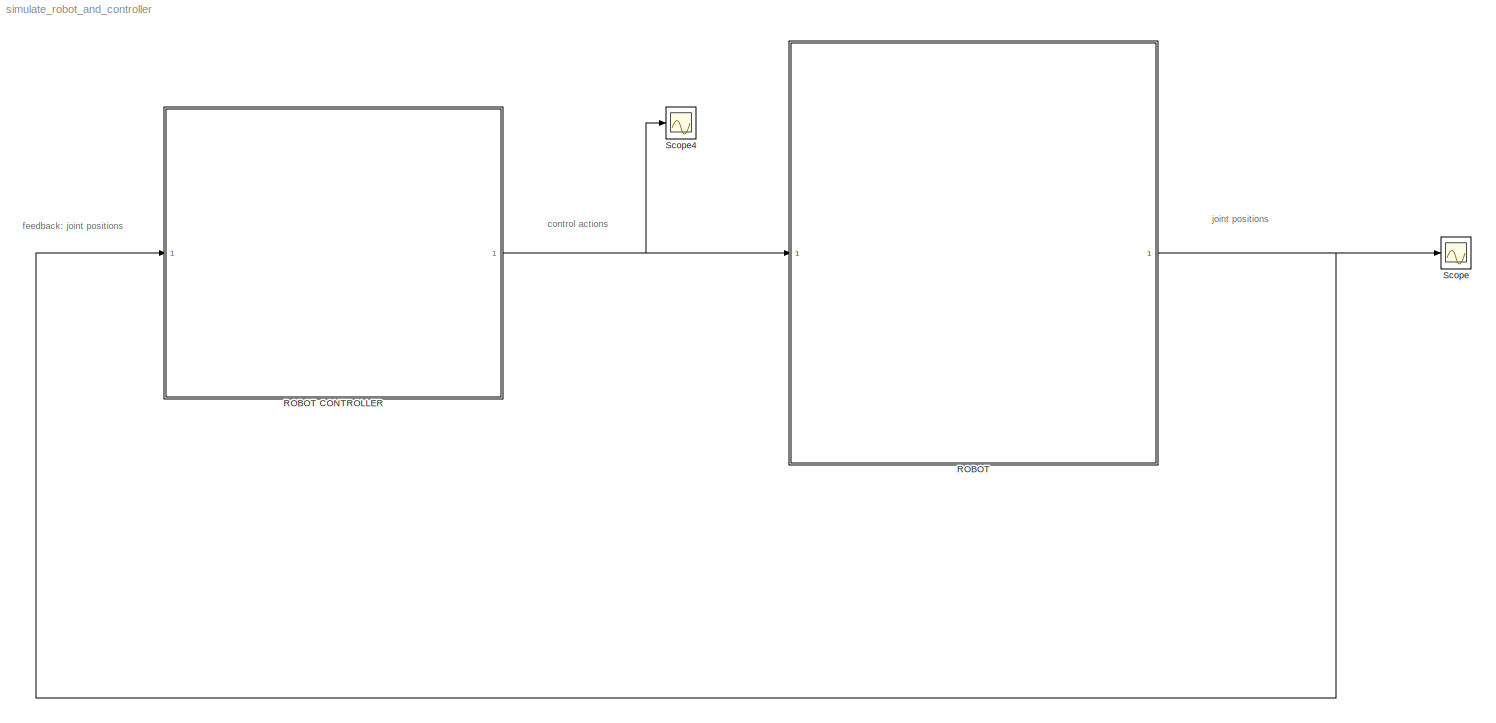
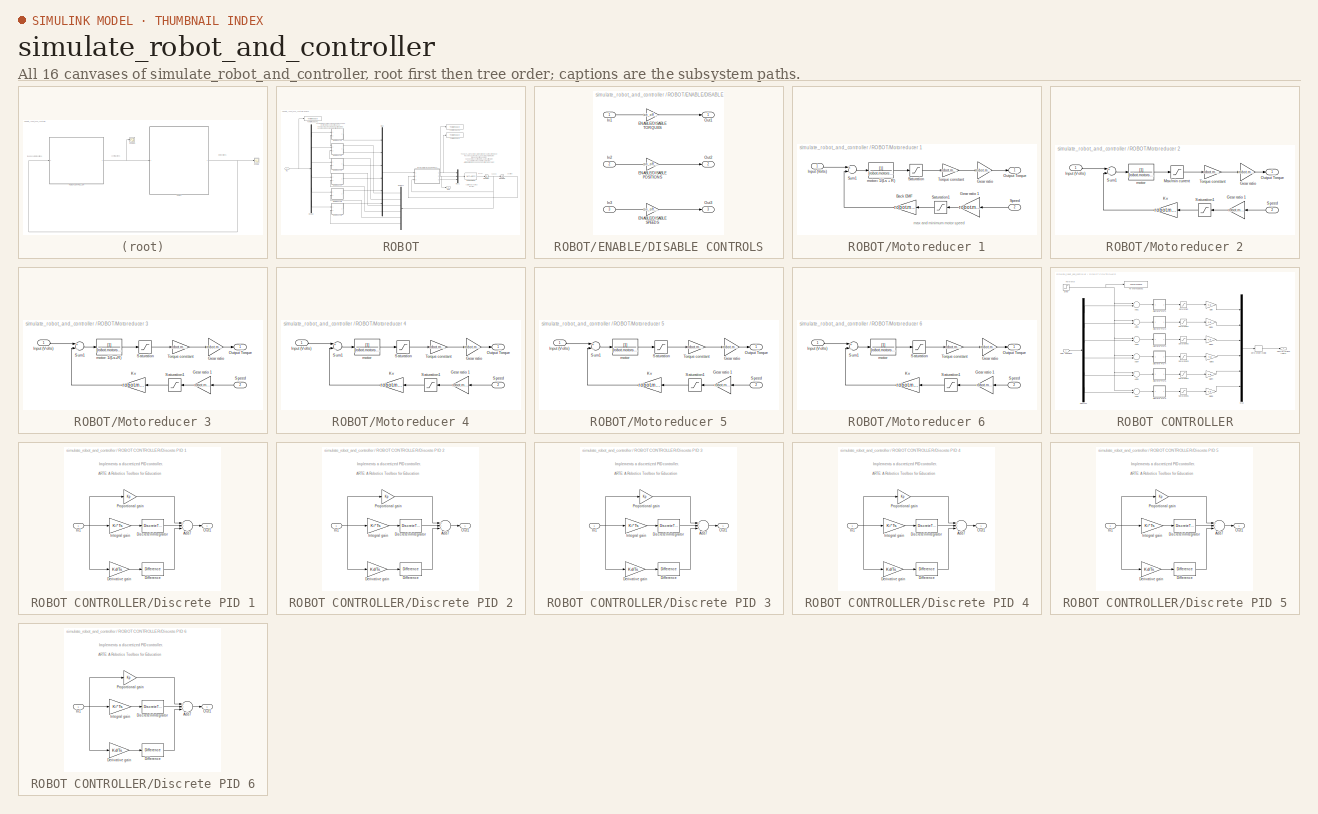
[diagram: thumbnail index - all 16 canvases of the model, root first then tree order]
MODEL simulate_robot_and_controller
KIND model
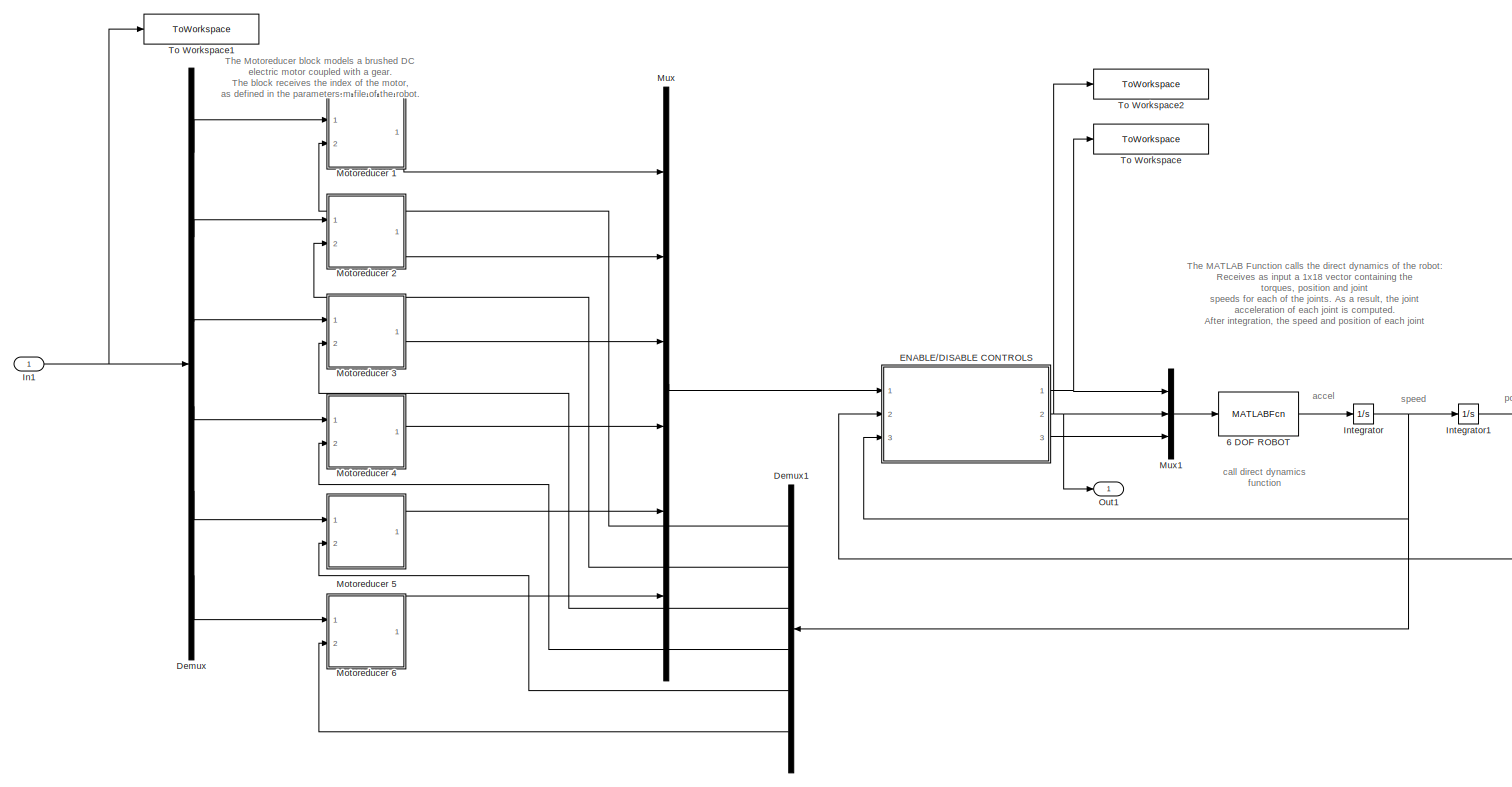
[diagram: ROBOT - part 1/2, most of the canvas]
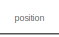
[diagram: ROBOT - part 2/2, middle right region]
BLOCK [SubSystem] ROBOT
  FunctionWithSeparateData = off
  MaskDisplay = port_label('output', 1, 'Joint positions (rad)')\nport_label('input', 1, 'Control actions (Volts)')\nimage(imread('images/robot.png'))
  MaskHideContents = off
  MaskIconFrame = on
  MaskIconOpaque = on
  MaskIconRotate = none
  MaskIconUnits = autoscale
  MaskPortRotate = default
  MinAlgLoopOccurrences = off
  Opaque = off
  Ports = [1, 1]
  PropExecContextOutsideSubsystem = off
  RTWSystemCode = Auto
  RequestExecContextInheritance = off
  SID = 1
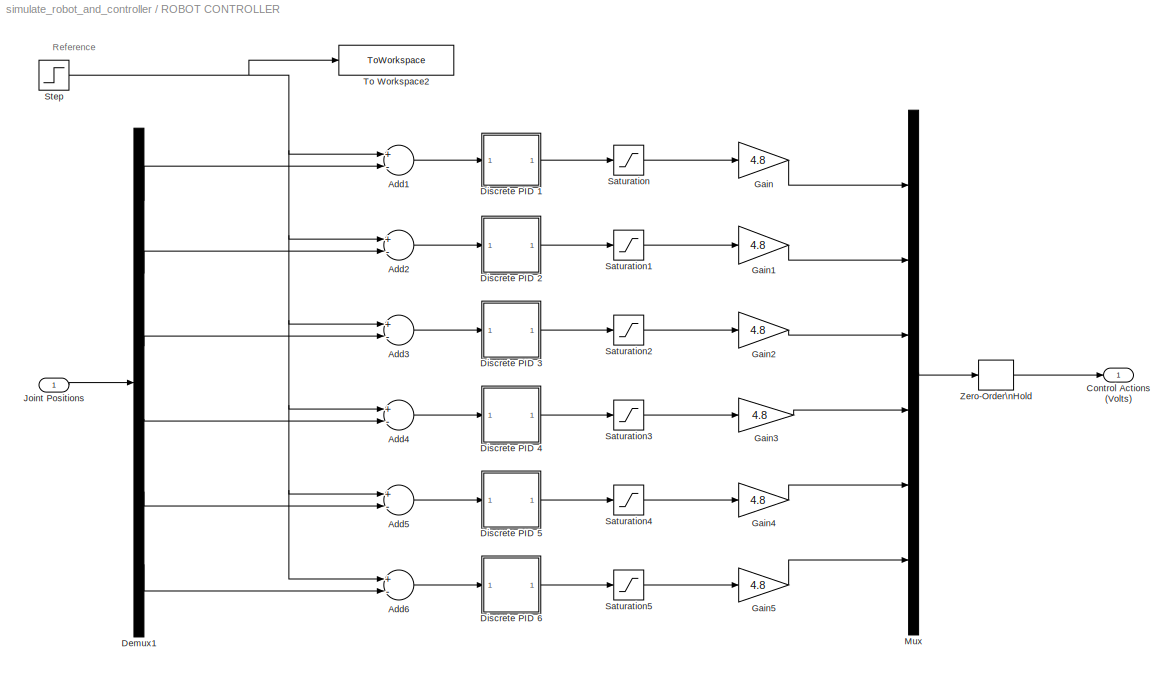
BLOCK [SubSystem] ROBOT CONTROLLER
  Description = ROBOT CONTROLLER
  FunctionWithSeparateData = off
  MaskDisplay = port_label('output', 1, 'Control Actions')\nport_label('input', 1, 'Joint Positions')\nimage(imread('images/robot-controller.jpg'))
  MaskHideContents = off
  MaskIconFrame = on
  MaskIconOpaque = on
  MaskIconRotate = none
  MaskIconUnits = autoscale
  MaskPortRotate = default
  MinAlgLoopOccurrences = off
  Opaque = off
  Ports = [1, 1]
  PropExecContextOutsideSubsystem = off
  RTWSystemCode = Auto
  RequestExecContextInheritance = off
  SID = 90
BLOCK [Sum] ROBOT CONTROLLER/Add1
  InputSameDT = off
  Inputs = +-
  OutDataTypeStr = Inherit: Inherit via internal rule
  Ports = [2, 1]
  SID = 92
  SaturateOnIntegerOverflow = off
BLOCK [Sum] ROBOT CONTROLLER/Add2
  InputSameDT = off
  Inputs = +-
  OutDataTypeStr = Inherit: Inherit via internal rule
  Ports = [2, 1]
  SID = 93
  SaturateOnIntegerOverflow = off
BLOCK [Sum] ROBOT CONTROLLER/Add3
  InputSameDT = off
  Inputs = +-
  OutDataTypeStr = Inherit: Inherit via internal rule
  Ports = [2, 1]
  SID = 94
  SaturateOnIntegerOverflow = off
BLOCK [Sum] ROBOT CONTROLLER/Add4
  InputSameDT = off
  Inputs = +-
  OutDataTypeStr = Inherit: Inherit via internal rule
  Ports = [2, 1]
  SID = 95
  SaturateOnIntegerOverflow = off
BLOCK [Sum] ROBOT CONTROLLER/Add5
  InputSameDT = off
  Inputs = +-
  OutDataTypeStr = Inherit: Inherit via internal rule
  Ports = [2, 1]
  SID = 96
  SaturateOnIntegerOverflow = off
BLOCK [Sum] ROBOT CONTROLLER/Add6
  InputSameDT = off
  Inputs = +-
  OutDataTypeStr = Inherit: Inherit via internal rule
  Ports = [2, 1]
  SID = 97
  SaturateOnIntegerOverflow = off
BLOCK [Outport] ROBOT CONTROLLER/Control Actions (Volts)
  IconDisplay = Port number
  SID = 168
BLOCK [Demux] ROBOT CONTROLLER/Demux1
  DisplayOption = bar
  Outputs = 6
  Ports = [1, 6]
  SID = 98
BLOCK [SubSystem] ROBOT CONTROLLER/Discrete PID 1
  FunctionWithSeparateData = off
  MaskCallbackString = |||
  MaskDisplay = port_label('input',1,'e(k)')\nport_label('output',1,'u(k)')\n\n
  MaskEnableString = on,on,on,on
  MaskHideContents = off
  MaskIconFrame = on
  MaskIconOpaque = on
  MaskIconRotate = none
  MaskIconUnits = autoscale
  MaskPortRotate = default
  MaskPromptString = Proportional gain:|Derivative gain:|Integral gain: |Sample time:
  MaskStyleString = edit,edit,edit,edit
  MaskToolTipString = on,on,on,on
  MaskTunableValueString = on,on,on,on
  MaskValueString = 600|6|0|0.001
  MaskVariables = Kp=@1;Kd=@2;Ki=@3;Ts=@4;
  MaskVisibilityString = on,on,on,on
  MinAlgLoopOccurrences = off
  Opaque = off
  Ports = [1, 1]
  PropExecContextOutsideSubsystem = off
  RTWSystemCode = Auto
  RequestExecContextInheritance = off
  SID = 99
BLOCK [Sum] ROBOT CONTROLLER/Discrete PID 1/Add7
  InputSameDT = off
  Inputs = +++
  OutDataTypeStr = Inherit: Inherit via internal rule
  Ports = [3, 1]
  SID = 101
  SaturateOnIntegerOverflow = off
BLOCK [Gain] ROBOT CONTROLLER/Discrete PID 1/Derivative gain
  Gain = Kd/Ts
  OutDataTypeStr = Inherit: Inherit via internal rule
  ParamDataTypeStr = Inherit: Inherit via internal rule
  SID = 102
  SaturateOnIntegerOverflow = off
BLOCK [Reference] ROBOT CONTROLLER/Discrete PID 1/Difference  REF=simulink/Discrete/Difference
  DoSatur = off
  FunctionWithSeparateData = off
  GeneratePreprocessorConditionals = off
  ICPrevInput = 0.0
  LockScale = off
  OutDataType = fixdt(1, 16)
  OutDataTypeStr = Inherit: Inherit via internal rule
  OutMax = []
  OutMin = []
  OutScaling = 2^-10
  OutputDataTypeScalingMode = Inherit via internal rule
  Ports = [1, 1]
  RTWMemSecDataConstants = Inherit from model
  RTWMemSecDataInternal = Inherit from model
  RTWMemSecDataParameters = Inherit from model
  RTWMemSecFuncExecute = Inherit from model
  RTWMemSecFuncInitTerm = Inherit from model
  RndMeth = Floor
  SID = 103
  ShowPortLabels = FromPortIcon
  SourceBlock = simulink/Discrete/Difference
  SourceType = Difference
  SystemSampleTime = -1
BLOCK [DiscreteTransferFcn] ROBOT CONTROLLER/Discrete PID 1/Discrete\nIntegrator
  Denominator = [1 -1]
  Numerator = [1 0]
  SID = 104
  SampleTime = Ts
BLOCK [Inport] ROBOT CONTROLLER/Discrete PID 1/In1
  IconDisplay = Port number
  SID = 100
BLOCK [Gain] ROBOT CONTROLLER/Discrete PID 1/Integral gain
  Gain = Ki*Ts
  OutDataTypeStr = Inherit: Inherit via internal rule
  ParamDataTypeStr = Inherit: Inherit via internal rule
  SID = 105
  SaturateOnIntegerOverflow = off
BLOCK [Outport] ROBOT CONTROLLER/Discrete PID 1/Out1
  IconDisplay = Port number
  SID = 107
BLOCK [Gain] ROBOT CONTROLLER/Discrete PID 1/Proportional gain
  Gain = Kp
  OutDataTypeStr = Inherit: Inherit via internal rule
  ParamDataTypeStr = Inherit: Inherit via internal rule
  SID = 106
  SaturateOnIntegerOverflow = off
BLOCK [SubSystem] ROBOT CONTROLLER/Discrete PID 2
  FunctionWithSeparateData = off
  MaskCallbackString = |||
  MaskDisplay = port_label('input',1,'e(k)')\nport_label('output',1,'u(k)')\n\n
  MaskEnableString = on,on,on,on
  MaskHideContents = off
  MaskIconFrame = on
  MaskIconOpaque = on
  MaskIconRotate = none
  MaskIconUnits = autoscale
  MaskPortRotate = default
  MaskPromptString = Proportional gain:|Derivative gain:|Integral gain: |Sample time:
  MaskStyleString = edit,edit,edit,edit
  MaskToolTipString = on,on,on,on
  MaskTunableValueString = on,on,on,on
  MaskValueString = 1000|10|5|0.001
  MaskVariables = Kp=@1;Kd=@2;Ki=@3;Ts=@4;
  MaskVisibilityString = on,on,on,on
  MinAlgLoopOccurrences = off
  Opaque = off
  Ports = [1, 1]
  PropExecContextOutsideSubsystem = off
  RTWSystemCode = Auto
  RequestExecContextInheritance = off
  SID = 108
BLOCK [Sum] ROBOT CONTROLLER/Discrete PID 2/Add7
  InputSameDT = off
  Inputs = +++
  OutDataTypeStr = Inherit: Inherit via internal rule
  Ports = [3, 1]
  SID = 110
  SaturateOnIntegerOverflow = off
BLOCK [Gain] ROBOT CONTROLLER/Discrete PID 2/Derivative gain
  Gain = Kd/Ts
  OutDataTypeStr = Inherit: Inherit via internal rule
  ParamDataTypeStr = Inherit: Inherit via internal rule
  SID = 111
  SaturateOnIntegerOverflow = off
BLOCK [Reference] ROBOT CONTROLLER/Discrete PID 2/Difference  REF=simulink/Discrete/Difference
  DoSatur = off
  FunctionWithSeparateData = off
  GeneratePreprocessorConditionals = off
  ICPrevInput = 0.0
  LockScale = off
  OutDataType = fixdt(1, 16)
  OutDataTypeStr = Inherit: Inherit via internal rule
  OutMax = []
  OutMin = []
  OutScaling = 2^-10
  OutputDataTypeScalingMode = Inherit via internal rule
  Ports = [1, 1]
  RTWMemSecDataConstants = Inherit from model
  RTWMemSecDataInternal = Inherit from model
  RTWMemSecDataParameters = Inherit from model
  RTWMemSecFuncExecute = Inherit from model
  RTWMemSecFuncInitTerm = Inherit from model
  RndMeth = Floor
  SID = 112
  ShowPortLabels = FromPortIcon
  SourceBlock = simulink/Discrete/Difference
  SourceType = Difference
  SystemSampleTime = -1
BLOCK [DiscreteTransferFcn] ROBOT CONTROLLER/Discrete PID 2/Discrete\nIntegrator
  Denominator = [1 -1]
  Numerator = [1 0]
  SID = 113
  SampleTime = Ts
BLOCK [Inport] ROBOT CONTROLLER/Discrete PID 2/In1
  IconDisplay = Port number
  SID = 109
BLOCK [Gain] ROBOT CONTROLLER/Discrete PID 2/Integral gain
  Gain = Ki*Ts
  OutDataTypeStr = Inherit: Inherit via internal rule
  ParamDataTypeStr = Inherit: Inherit via internal rule
  SID = 114
  SaturateOnIntegerOverflow = off
BLOCK [Outport] ROBOT CONTROLLER/Discrete PID 2/Out1
  IconDisplay = Port number
  SID = 116
BLOCK [Gain] ROBOT CONTROLLER/Discrete PID 2/Proportional gain
  Gain = Kp
  OutDataTypeStr = Inherit: Inherit via internal rule
  ParamDataTypeStr = Inherit: Inherit via internal rule
  SID = 115
  SaturateOnIntegerOverflow = off
BLOCK [SubSystem] ROBOT CONTROLLER/Discrete PID 3
  FunctionWithSeparateData = off
  MaskCallbackString = |||
  MaskDisplay = port_label('input',1,'e(k)')\nport_label('output',1,'u(k)')\n\n
  MaskEnableString = on,on,on,on
  MaskHideContents = off
  MaskIconFrame = on
  MaskIconOpaque = on
  MaskIconRotate = none
  MaskIconUnits = autoscale
  MaskPortRotate = default
  MaskPromptString = Proportional gain:|Derivative gain:|Integral gain: |Sample time:
  MaskStyleString = edit,edit,edit,edit
  MaskToolTipString = on,on,on,on
  MaskTunableValueString = on,on,on,on
  MaskValueString = 800|7|5|0.001
  MaskVariables = Kp=@1;Kd=@2;Ki=@3;Ts=@4;
  MaskVisibilityString = on,on,on,on
  MinAlgLoopOccurrences = off
  Opaque = off
  Ports = [1, 1]
  PropExecContextOutsideSubsystem = off
  RTWSystemCode = Auto
  RequestExecContextInheritance = off
  SID = 117
BLOCK [Sum] ROBOT CONTROLLER/Discrete PID 3/Add7
  InputSameDT = off
  Inputs = +++
  OutDataTypeStr = Inherit: Inherit via internal rule
  Ports = [3, 1]
  SID = 119
  SaturateOnIntegerOverflow = off
BLOCK [Gain] ROBOT CONTROLLER/Discrete PID 3/Derivative gain
  Gain = Kd/Ts
  OutDataTypeStr = Inherit: Inherit via internal rule
  ParamDataTypeStr = Inherit: Inherit via internal rule
  SID = 120
  SaturateOnIntegerOverflow = off
BLOCK [Reference] ROBOT CONTROLLER/Discrete PID 3/Difference  REF=simulink/Discrete/Difference
  DoSatur = off
  FunctionWithSeparateData = off
  GeneratePreprocessorConditionals = off
  ICPrevInput = 0.0
  LockScale = off
  OutDataType = fixdt(1, 16)
  OutDataTypeStr = Inherit: Inherit via internal rule
  OutMax = []
  OutMin = []
  OutScaling = 2^-10
  OutputDataTypeScalingMode = Inherit via internal rule
  Ports = [1, 1]
  RTWMemSecDataConstants = Inherit from model
  RTWMemSecDataInternal = Inherit from model
  RTWMemSecDataParameters = Inherit from model
  RTWMemSecFuncExecute = Inherit from model
  RTWMemSecFuncInitTerm = Inherit from model
  RndMeth = Floor
  SID = 121
  ShowPortLabels = FromPortIcon
  SourceBlock = simulink/Discrete/Difference
  SourceType = Difference
  SystemSampleTime = -1
BLOCK [DiscreteTransferFcn] ROBOT CONTROLLER/Discrete PID 3/Discrete\nIntegrator
  Denominator = [1 -1]
  Numerator = [1 0]
  SID = 122
  SampleTime = Ts
BLOCK [Inport] ROBOT CONTROLLER/Discrete PID 3/In1
  IconDisplay = Port number
  SID = 118
BLOCK [Gain] ROBOT CONTROLLER/Discrete PID 3/Integral gain
  Gain = Ki*Ts
  OutDataTypeStr = Inherit: Inherit via internal rule
  ParamDataTypeStr = Inherit: Inherit via internal rule
  SID = 123
  SaturateOnIntegerOverflow = off
BLOCK [Outport] ROBOT CONTROLLER/Discrete PID 3/Out1
  IconDisplay = Port number
  SID = 125
BLOCK [Gain] ROBOT CONTROLLER/Discrete PID 3/Proportional gain
  Gain = Kp
  OutDataTypeStr = Inherit: Inherit via internal rule
  ParamDataTypeStr = Inherit: Inherit via internal rule
  SID = 124
  SaturateOnIntegerOverflow = off
BLOCK [SubSystem] ROBOT CONTROLLER/Discrete PID 4
  FunctionWithSeparateData = off
  MaskCallbackString = |||
  MaskDisplay = port_label('input',1,'e(k)')\nport_label('output',1,'u(k)')\n\n
  MaskEnableString = on,on,on,on
  MaskHideContents = off
  MaskIconFrame = on
  MaskIconOpaque = on
  MaskIconRotate = none
  MaskIconUnits = autoscale
  MaskPortRotate = default
  MaskPromptString = Proportional gain:|Derivative gain:|Integral gain: |Sample time:
  MaskStyleString = edit,edit,edit,edit
  MaskToolTipString = on,on,on,on
  MaskTunableValueString = on,on,on,on
  MaskValueString = 2000|10|0|0.001
  MaskVariables = Kp=@1;Kd=@2;Ki=@3;Ts=@4;
  MaskVisibilityString = on,on,on,on
  MinAlgLoopOccurrences = off
  Opaque = off
  Ports = [1, 1]
  PropExecContextOutsideSubsystem = off
  RTWSystemCode = Auto
  RequestExecContextInheritance = off
  SID = 126
BLOCK [Sum] ROBOT CONTROLLER/Discrete PID 4/Add7
  InputSameDT = off
  Inputs = +++
  OutDataTypeStr = Inherit: Inherit via internal rule
  Ports = [3, 1]
  SID = 128
  SaturateOnIntegerOverflow = off
BLOCK [Gain] ROBOT CONTROLLER/Discrete PID 4/Derivative gain
  Gain = Kd/Ts
  OutDataTypeStr = Inherit: Inherit via internal rule
  ParamDataTypeStr = Inherit: Inherit via internal rule
  SID = 129
  SaturateOnIntegerOverflow = off
BLOCK [Reference] ROBOT CONTROLLER/Discrete PID 4/Difference  REF=simulink/Discrete/Difference
  DoSatur = off
  FunctionWithSeparateData = off
  GeneratePreprocessorConditionals = off
  ICPrevInput = 0.0
  LockScale = off
  OutDataType = fixdt(1, 16)
  OutDataTypeStr = Inherit: Inherit via internal rule
  OutMax = []
  OutMin = []
  OutScaling = 2^-10
  OutputDataTypeScalingMode = Inherit via internal rule
  Ports = [1, 1]
  RTWMemSecDataConstants = Inherit from model
  RTWMemSecDataInternal = Inherit from model
  RTWMemSecDataParameters = Inherit from model
  RTWMemSecFuncExecute = Inherit from model
  RTWMemSecFuncInitTerm = Inherit from model
  RndMeth = Floor
  SID = 130
  ShowPortLabels = FromPortIcon
  SourceBlock = simulink/Discrete/Difference
  SourceType = Difference
  SystemSampleTime = -1
BLOCK [DiscreteTransferFcn] ROBOT CONTROLLER/Discrete PID 4/Discrete\nIntegrator
  Denominator = [1 -1]
  Numerator = [1 0]
  SID = 131
  SampleTime = Ts
BLOCK [Inport] ROBOT CONTROLLER/Discrete PID 4/In1
  IconDisplay = Port number
  SID = 127
BLOCK [Gain] ROBOT CONTROLLER/Discrete PID 4/Integral gain
  Gain = Ki*Ts
  OutDataTypeStr = Inherit: Inherit via internal rule
  ParamDataTypeStr = Inherit: Inherit via internal rule
  SID = 132
  SaturateOnIntegerOverflow = off
BLOCK [Outport] ROBOT CONTROLLER/Discrete PID 4/Out1
  IconDisplay = Port number
  SID = 134
BLOCK [Gain] ROBOT CONTROLLER/Discrete PID 4/Proportional gain
  Gain = Kp
  OutDataTypeStr = Inherit: Inherit via internal rule
  ParamDataTypeStr = Inherit: Inherit via internal rule
  SID = 133
  SaturateOnIntegerOverflow = off
BLOCK [SubSystem] ROBOT CONTROLLER/Discrete PID 5
  FunctionWithSeparateData = off
  MaskCallbackString = |||
  MaskDisplay = port_label('input',1,'e(k)')\nport_label('output',1,'u(k)')\n\n
  MaskEnableString = on,on,on,on
  MaskHideContents = off
  MaskIconFrame = on
  MaskIconOpaque = on
  MaskIconRotate = none
  MaskIconUnits = autoscale
  MaskPortRotate = default
  MaskPromptString = Proportional gain:|Derivative gain:|Integral gain: |Sample time:
  MaskStyleString = edit,edit,edit,edit
  MaskToolTipString = on,on,on,on
  MaskTunableValueString = on,on,on,on
  MaskValueString = 3000|7|3|0.001
  MaskVariables = Kp=@1;Kd=@2;Ki=@3;Ts=@4;
  MaskVisibilityString = on,on,on,on
  MinAlgLoopOccurrences = off
  Opaque = off
  Ports = [1, 1]
  PropExecContextOutsideSubsystem = off
  RTWSystemCode = Auto
  RequestExecContextInheritance = off
  SID = 135
BLOCK [Sum] ROBOT CONTROLLER/Discrete PID 5/Add7
  InputSameDT = off
  Inputs = +++
  OutDataTypeStr = Inherit: Inherit via internal rule
  Ports = [3, 1]
  SID = 137
  SaturateOnIntegerOverflow = off
BLOCK [Gain] ROBOT CONTROLLER/Discrete PID 5/Derivative gain
  Gain = Kd/Ts
  OutDataTypeStr = Inherit: Inherit via internal rule
  ParamDataTypeStr = Inherit: Inherit via internal rule
  SID = 138
  SaturateOnIntegerOverflow = off
BLOCK [Reference] ROBOT CONTROLLER/Discrete PID 5/Difference  REF=simulink/Discrete/Difference
  DoSatur = off
  FunctionWithSeparateData = off
  GeneratePreprocessorConditionals = off
  ICPrevInput = 0.0
  LockScale = off
  OutDataType = fixdt(1, 16)
  OutDataTypeStr = Inherit: Inherit via internal rule
  OutMax = []
  OutMin = []
  OutScaling = 2^-10
  OutputDataTypeScalingMode = Inherit via internal rule
  Ports = [1, 1]
  RTWMemSecDataConstants = Inherit from model
  RTWMemSecDataInternal = Inherit from model
  RTWMemSecDataParameters = Inherit from model
  RTWMemSecFuncExecute = Inherit from model
  RTWMemSecFuncInitTerm = Inherit from model
  RndMeth = Floor
  SID = 139
  ShowPortLabels = FromPortIcon
  SourceBlock = simulink/Discrete/Difference
  SourceType = Difference
  SystemSampleTime = -1
BLOCK [DiscreteTransferFcn] ROBOT CONTROLLER/Discrete PID 5/Discrete\nIntegrator
  Denominator = [1 -1]
  Numerator = [1 0]
  SID = 140
  SampleTime = Ts
BLOCK [Inport] ROBOT CONTROLLER/Discrete PID 5/In1
  IconDisplay = Port number
  SID = 136
BLOCK [Gain] ROBOT CONTROLLER/Discrete PID 5/Integral gain
  Gain = Ki*Ts
  OutDataTypeStr = Inherit: Inherit via internal rule
  ParamDataTypeStr = Inherit: Inherit via internal rule
  SID = 141
  SaturateOnIntegerOverflow = off
BLOCK [Outport] ROBOT CONTROLLER/Discrete PID 5/Out1
  IconDisplay = Port number
  SID = 143
BLOCK [Gain] ROBOT CONTROLLER/Discrete PID 5/Proportional gain
  Gain = Kp
  OutDataTypeStr = Inherit: Inherit via internal rule
  ParamDataTypeStr = Inherit: Inherit via internal rule
  SID = 142
  SaturateOnIntegerOverflow = off
BLOCK [SubSystem] ROBOT CONTROLLER/Discrete PID 6
  FunctionWithSeparateData = off
  MaskCallbackString = |||
  MaskDisplay = port_label('input',1,'e(k)')\nport_label('output',1,'u(k)')\n\n
  MaskEnableString = on,on,on,on
  MaskHideContents = off
  MaskIconFrame = on
  MaskIconOpaque = on
  MaskIconRotate = none
  MaskIconUnits = autoscale
  MaskPortRotate = default
  MaskPromptString = Proportional gain:|Derivative gain:|Integral gain: |Sample time:
  MaskStyleString = edit,edit,edit,edit
  MaskToolTipString = on,on,on,on
  MaskTunableValueString = on,on,on,on
  MaskValueString = 3000|5|0|0.001
  MaskVariables = Kp=@1;Kd=@2;Ki=@3;Ts=@4;
  MaskVisibilityString = on,on,on,on
  MinAlgLoopOccurrences = off
  Opaque = off
  Ports = [1, 1]
  PropExecContextOutsideSubsystem = off
  RTWSystemCode = Auto
  RequestExecContextInheritance = off
  SID = 144
BLOCK [Sum] ROBOT CONTROLLER/Discrete PID 6/Add7
  InputSameDT = off
  Inputs = +++
  OutDataTypeStr = Inherit: Inherit via internal rule
  Ports = [3, 1]
  SID = 146
  SaturateOnIntegerOverflow = off
BLOCK [Gain] ROBOT CONTROLLER/Discrete PID 6/Derivative gain
  Gain = Kd/Ts
  OutDataTypeStr = Inherit: Inherit via internal rule
  ParamDataTypeStr = Inherit: Inherit via internal rule
  SID = 147
  SaturateOnIntegerOverflow = off
BLOCK [Reference] ROBOT CONTROLLER/Discrete PID 6/Difference  REF=simulink/Discrete/Difference
  DoSatur = off
  FunctionWithSeparateData = off
  GeneratePreprocessorConditionals = off
  ICPrevInput = 0.0
  LockScale = off
  OutDataType = fixdt(1, 16)
  OutDataTypeStr = Inherit: Inherit via internal rule
  OutMax = []
  OutMin = []
  OutScaling = 2^-10
  OutputDataTypeScalingMode = Inherit via internal rule
  Ports = [1, 1]
  RTWMemSecDataConstants = Inherit from model
  RTWMemSecDataInternal = Inherit from model
  RTWMemSecDataParameters = Inherit from model
  RTWMemSecFuncExecute = Inherit from model
  RTWMemSecFuncInitTerm = Inherit from model
  RndMeth = Floor
  SID = 148
  ShowPortLabels = FromPortIcon
  SourceBlock = simulink/Discrete/Difference
  SourceType = Difference
  SystemSampleTime = -1
BLOCK [DiscreteTransferFcn] ROBOT CONTROLLER/Discrete PID 6/Discrete\nIntegrator
  Denominator = [1 -1]
  Numerator = [1 0]
  SID = 149
  SampleTime = Ts
BLOCK [Inport] ROBOT CONTROLLER/Discrete PID 6/In1
  IconDisplay = Port number
  SID = 145
BLOCK [Gain] ROBOT CONTROLLER/Discrete PID 6/Integral gain
  Gain = Ki*Ts
  OutDataTypeStr = Inherit: Inherit via internal rule
  ParamDataTypeStr = Inherit: Inherit via internal rule
  SID = 150
  SaturateOnIntegerOverflow = off
BLOCK [Outport] ROBOT CONTROLLER/Discrete PID 6/Out1
  IconDisplay = Port number
  SID = 152
BLOCK [Gain] ROBOT CONTROLLER/Discrete PID 6/Proportional gain
  Gain = Kp
  OutDataTypeStr = Inherit: Inherit via internal rule
  ParamDataTypeStr = Inherit: Inherit via internal rule
  SID = 151
  SaturateOnIntegerOverflow = off
BLOCK [Gain] ROBOT CONTROLLER/Gain
  Gain = 4.8
  OutDataTypeStr = Inherit: Inherit via internal rule
  ParamDataTypeStr = Inherit: Inherit via internal rule
  SID = 153
  SaturateOnIntegerOverflow = off
BLOCK [Gain] ROBOT CONTROLLER/Gain1
  Gain = 4.8
  OutDataTypeStr = Inherit: Inherit via internal rule
  ParamDataTypeStr = Inherit: Inherit via internal rule
  SID = 154
  SaturateOnIntegerOverflow = off
BLOCK [Gain] ROBOT CONTROLLER/Gain2
  Gain = 4.8
  OutDataTypeStr = Inherit: Inherit via internal rule
  ParamDataTypeStr = Inherit: Inherit via internal rule
  SID = 155
  SaturateOnIntegerOverflow = off
BLOCK [Gain] ROBOT CONTROLLER/Gain3
  Gain = 4.8
  OutDataTypeStr = Inherit: Inherit via internal rule
  ParamDataTypeStr = Inherit: Inherit via internal rule
  SID = 156
  SaturateOnIntegerOverflow = off
BLOCK [Gain] ROBOT CONTROLLER/Gain4
  Gain = 4.8
  OutDataTypeStr = Inherit: Inherit via internal rule
  ParamDataTypeStr = Inherit: Inherit via internal rule
  SID = 157
  SaturateOnIntegerOverflow = off
BLOCK [Gain] ROBOT CONTROLLER/Gain5
  Gain = 4.8
  OutDataTypeStr = Inherit: Inherit via internal rule
  ParamDataTypeStr = Inherit: Inherit via internal rule
  SID = 158
  SaturateOnIntegerOverflow = off
BLOCK [Inport] ROBOT CONTROLLER/Joint Positions
  IconDisplay = Port number
  PortDimensions = 6
  SID = 91
BLOCK [Mux] ROBOT CONTROLLER/Mux
  DisplayOption = bar
  Inputs = 6
  Ports = [6, 1]
  SID = 159
BLOCK [Saturate] ROBOT CONTROLLER/Saturation
  InputPortMap = u0
  LowerLimit = -10
  Ports = [1, 1]
  SID = 160
  UpperLimit = 10
BLOCK [Saturate] ROBOT CONTROLLER/Saturation1
  InputPortMap = u0
  LowerLimit = -10
  Ports = [1, 1]
  SID = 161
  UpperLimit = 10
BLOCK [Saturate] ROBOT CONTROLLER/Saturation2
  InputPortMap = u0
  LowerLimit = -10
  Ports = [1, 1]
  SID = 162
  UpperLimit = 10
BLOCK [Saturate] ROBOT CONTROLLER/Saturation3
  InputPortMap = u0
  LowerLimit = -10
  Ports = [1, 1]
  SID = 163
  UpperLimit = 10
BLOCK [Saturate] ROBOT CONTROLLER/Saturation4
  InputPortMap = u0
  LowerLimit = -10
  Ports = [1, 1]
  SID = 164
  UpperLimit = 10
BLOCK [Saturate] ROBOT CONTROLLER/Saturation5
  InputPortMap = u0
  LowerLimit = -10
  Ports = [1, 1]
  SID = 165
  UpperLimit = 10
BLOCK [Step] ROBOT CONTROLLER/Step
  After = 0.08
  SID = 166
  SampleTime = 0
  Time = 0
BLOCK [ToWorkspace] ROBOT CONTROLLER/To Workspace2
  MaxDataPoints = inf
  Ports = [1]
  SID = 173
  SampleTime = -1
  SaveFormat = Array
  VariableName = reference
BLOCK [ZeroOrderHold] ROBOT CONTROLLER/Zero-Order\nHold
  SID = 167
  SampleTime = 0.001
BLOCK [MATLABFcn] ROBOT/6 DOF ROBOT
  MATLABFcn = call_direct_dynamics(u)
  OutputDimensions = 6
  Ports = [1, 1]
  SID = 3
BLOCK [Demux] ROBOT/Demux
  DisplayOption = bar
  Outputs = 6
  Ports = [1, 6]
  SID = 4
BLOCK [Demux] ROBOT/Demux1
  DisplayOption = bar
  Outputs = 6
  Ports = [1, 6]
  SID = 5
BLOCK [SubSystem] ROBOT/ENABLE//DISABLE CONTROLS
  FunctionWithSeparateData = off
  MaskDisplay = port_label('input', 1, 'input_torque')\nport_label('output', 1, 'output_torque')\nport_label('input', 2, 'input_pos')\nport_label('output', 2, 'output_pos')\nport_label('input', 3, 'input_vel')\nport_label('output', 3, 'output_vel')
  MaskEnableString = on
  MaskHideContents = off
  MaskIconFrame = on
  MaskIconOpaque = on
  MaskIconRotate = none
  MaskIconUnits = autoscale
  MaskPortRotate = default
  MaskPromptString = Set [1 1 1 1 1 1] to enable all motors and controls. Set [1 0 0 0 0 0] to enable just joint 1 control, [0 1 0 0 0 0] to enable 2, and so on:
  MaskStyleString = edit
  MaskToolTipString = on
  MaskTunableValueString = on
  MaskValueString = [1 1 1 1 1 1]
  MaskVariables = on_off_vector=@1;
  MaskVisibilityString = on
  MinAlgLoopOccurrences = off
  Opaque = off
  Ports = [3, 3]
  PropExecContextOutsideSubsystem = off
  RTWSystemCode = Auto
  RequestExecContextInheritance = off
  SID = 6
BLOCK [Gain] ROBOT/ENABLE//DISABLE CONTROLS/ENABLE//DISABLE POSITIONS
  Gain = on_off_vector
  OutDataTypeStr = Inherit: Inherit via internal rule
  ParamDataTypeStr = Inherit: Inherit via internal rule
  SID = 10
  SaturateOnIntegerOverflow = off
BLOCK [Gain] ROBOT/ENABLE//DISABLE CONTROLS/ENABLE//DISABLE SPEEDS
  Gain = on_off_vector
  OutDataTypeStr = Inherit: Inherit via internal rule
  ParamDataTypeStr = Inherit: Inherit via internal rule
  SID = 11
  SaturateOnIntegerOverflow = off
BLOCK [Gain] ROBOT/ENABLE//DISABLE CONTROLS/ENABLE//DISABLE TORQUES
  Gain = on_off_vector
  OutDataTypeStr = Inherit: Inherit via internal rule
  ParamDataTypeStr = Inherit: Inherit via internal rule
  SID = 12
  SaturateOnIntegerOverflow = off
BLOCK [Inport] ROBOT/ENABLE//DISABLE CONTROLS/In1
  IconDisplay = Port number
  SID = 7
BLOCK [Inport] ROBOT/ENABLE//DISABLE CONTROLS/In2
  IconDisplay = Port number
  Port = 2
  SID = 8
BLOCK [Inport] ROBOT/ENABLE//DISABLE CONTROLS/In3
  IconDisplay = Port number
  Port = 3
  SID = 9
BLOCK [Outport] ROBOT/ENABLE//DISABLE CONTROLS/Out1
  IconDisplay = Port number
  SID = 13
BLOCK [Outport] ROBOT/ENABLE//DISABLE CONTROLS/Out2
  IconDisplay = Port number
  Port = 2
  SID = 14
BLOCK [Outport] ROBOT/ENABLE//DISABLE CONTROLS/Out3
  IconDisplay = Port number
  Port = 3
  SID = 15
BLOCK [Inport] ROBOT/In1
  IconDisplay = Port number
  SID = 2
BLOCK [Integrator] ROBOT/Integrator
  InitialCondition = [0 0 0 0 0 0]
  Ports = [1, 1]
  SID = 16
BLOCK [Integrator] ROBOT/Integrator1
  InitialCondition = [0 0 0 0 0 0]
  Ports = [1, 1]
  SID = 17
BLOCK [SubSystem] ROBOT/Motoreducer 1
  FunctionWithSeparateData = off
  MaskDisplay = image(imread('images/brushless_dc.jpg'))
  MaskEnableString = on
  MaskHideContents = off
  MaskIconFrame = on
  MaskIconOpaque = on
  MaskIconRotate = none
  MaskIconUnits = autoscale
  MaskPortRotate = default
  MaskPromptString = Select motor index
  MaskStyleString = edit
  MaskToolTipString = on
  MaskTunableValueString = on
  MaskValueString = 1
  MaskVariables = index=@1;
  MaskVisibilityString = on
  MinAlgLoopOccurrences = off
  Opaque = off
  Ports = [2, 1]
  PropExecContextOutsideSubsystem = off
  RTWSystemCode = Auto
  RequestExecContextInheritance = off
  SID = 18
BLOCK [Gain] ROBOT/Motoreducer 1/Back EMF
  Gain = robot.motors.constants(index,4)
  SID = 21
BLOCK [Gain] ROBOT/Motoreducer 1/Gear ratio
  Gain = robot.motors.G(index)
  SID = 22
BLOCK [Gain] ROBOT/Motoreducer 1/Gear ratio 1
  Gain = robot.motors.G(index)
  SID = 23
BLOCK [Inport] ROBOT/Motoreducer 1/Input (Volts)
  IconDisplay = Port number
  SID = 19
BLOCK [Outport] ROBOT/Motoreducer 1/Output Torque
  IconDisplay = Port number
  InitialOutput = 0
  SID = 28
BLOCK [Saturate] ROBOT/Motoreducer 1/Saturation
  InputPortMap = u0
  LowerLimit = -robot.motors.constants(index,5)
  Ports = [1, 1]
  SID = 24
  UpperLimit = robot.motors.constants(index,5)
BLOCK [Saturate] ROBOT/Motoreducer 1/Saturation1
  InputPortMap = u0
  LowerLimit = -robot.motors.constants(index,6)
  Ports = [1, 1]
  SID = 174
  UpperLimit = robot.motors.constants(index,6)
BLOCK [Inport] ROBOT/Motoreducer 1/Speed
  IconDisplay = Port number
  Port = 2
  SID = 20
BLOCK [Sum] ROBOT/Motoreducer 1/Sum1
  Inputs = +-
  Ports = [2, 1]
  SID = 25
BLOCK [Gain] ROBOT/Motoreducer 1/Torque constant
  Gain = robot.motors.constants(index,4)
  SID = 26
BLOCK [TransferFcn] ROBOT/Motoreducer 1/motor= 1//(Ls + R)
  Denominator = [robot.motors.constants(index,2) robot.motors.constants(index,1)]
  SID = 27
BLOCK [SubSystem] ROBOT/Motoreducer 2
  FunctionWithSeparateData = off
  MaskDisplay = image(imread('images/brushless_dc.jpg'))
  MaskEnableString = on
  MaskHideContents = off
  MaskIconFrame = on
  MaskIconOpaque = on
  MaskIconRotate = none
  MaskIconUnits = autoscale
  MaskPortRotate = default
  MaskPromptString = Select motor index
  MaskStyleString = edit
  MaskToolTipString = on
  MaskTunableValueString = on
  MaskValueString = 2
  MaskVariables = index=@1;
  MaskVisibilityString = on
  MinAlgLoopOccurrences = off
  Opaque = off
  Ports = [2, 1]
  PropExecContextOutsideSubsystem = off
  RTWSystemCode = Auto
  RequestExecContextInheritance = off
  SID = 29
BLOCK [Gain] ROBOT/Motoreducer 2/Gear ratio
  Gain = robot.motors.G(index)
  SID = 32
BLOCK [Gain] ROBOT/Motoreducer 2/Gear ratio 1
  Gain = robot.motors.G(index)
  SID = 33
BLOCK [Inport] ROBOT/Motoreducer 2/Input (Volts)
  IconDisplay = Port number
  SID = 30
BLOCK [Gain] ROBOT/Motoreducer 2/Kv
  Gain = robot.motors.constants(index,4)
  SID = 34
BLOCK [Saturate] ROBOT/Motoreducer 2/Max//min current
  InputPortMap = u0
  LowerLimit = -robot.motors.constants(index,5)
  Ports = [1, 1]
  SID = 35
  UpperLimit = robot.motors.constants(index,5)
BLOCK [Outport] ROBOT/Motoreducer 2/Output Torque
  IconDisplay = Port number
  InitialOutput = 0
  SID = 39
BLOCK [Saturate] ROBOT/Motoreducer 2/Saturation1
  InputPortMap = u0
  LowerLimit = -robot.motors.constants(index,6)
  Ports = [1, 1]
  SID = 175
  UpperLimit = robot.motors.constants(index,6)
BLOCK [Inport] ROBOT/Motoreducer 2/Speed
  IconDisplay = Port number
  Port = 2
  SID = 31
BLOCK [Sum] ROBOT/Motoreducer 2/Sum1
  Inputs = +-
  Ports = [2, 1]
  SID = 36
BLOCK [Gain] ROBOT/Motoreducer 2/Torque constant
  Gain = robot.motors.constants(index,4)
  SID = 37
BLOCK [TransferFcn] ROBOT/Motoreducer 2/motor
  Denominator = [robot.motors.constants(index,2) robot.motors.constants(index,1)]
  SID = 38
BLOCK [SubSystem] ROBOT/Motoreducer 3
  FunctionWithSeparateData = off
  MaskDisplay = image(imread('images/brushless_dc.jpg'))
  MaskEnableString = on
  MaskHideContents = off
  MaskIconFrame = on
  MaskIconOpaque = on
  MaskIconRotate = none
  MaskIconUnits = autoscale
  MaskPortRotate = default
  MaskPromptString = Select motor index
  MaskStyleString = edit
  MaskToolTipString = on
  MaskTunableValueString = on
  MaskValueString = 3
  MaskVariables = index=@1;
  MaskVisibilityString = on
  MinAlgLoopOccurrences = off
  Opaque = off
  Ports = [2, 1]
  PropExecContextOutsideSubsystem = off
  RTWSystemCode = Auto
  RequestExecContextInheritance = off
  SID = 40
BLOCK [Gain] ROBOT/Motoreducer 3/Gear ratio
  Gain = robot.motors.G(index)
  SID = 43
BLOCK [Gain] ROBOT/Motoreducer 3/Gear ratio 1
  Gain = robot.motors.G(index)
  SID = 44
BLOCK [Inport] ROBOT/Motoreducer 3/Input (Volts)
  IconDisplay = Port number
  SID = 41
BLOCK [Gain] ROBOT/Motoreducer 3/Kv
  Gain = robot.motors.constants(index,4)
  SID = 45
BLOCK [Outport] ROBOT/Motoreducer 3/Output Torque
  IconDisplay = Port number
  InitialOutput = 0
  SID = 50
BLOCK [Saturate] ROBOT/Motoreducer 3/Saturation
  InputPortMap = u0
  LowerLimit = -robot.motors.constants(index,5)
  Ports = [1, 1]
  SID = 46
  UpperLimit = robot.motors.constants(index,5)
BLOCK [Saturate] ROBOT/Motoreducer 3/Saturation1
  InputPortMap = u0
  LowerLimit = -robot.motors.constants(index,6)
  Ports = [1, 1]
  SID = 176
  UpperLimit = robot.motors.constants(index,6)
BLOCK [Inport] ROBOT/Motoreducer 3/Speed
  IconDisplay = Port number
  Port = 2
  SID = 42
BLOCK [Sum] ROBOT/Motoreducer 3/Sum1
  Inputs = +-
  Ports = [2, 1]
  SID = 47
BLOCK [Gain] ROBOT/Motoreducer 3/Torque constant
  Gain = robot.motors.constants(index,4)
  SID = 48
BLOCK [TransferFcn] ROBOT/Motoreducer 3/motor: 1//(Ls+R)
  Denominator = [robot.motors.constants(index,2) robot.motors.constants(index,1)]
  SID = 49
BLOCK [SubSystem] ROBOT/Motoreducer 4
  FunctionWithSeparateData = off
  MaskDisplay = image(imread('images/brushless_dc.jpg'))
  MaskEnableString = on
  MaskHideContents = off
  MaskIconFrame = on
  MaskIconOpaque = on
  MaskIconRotate = none
  MaskIconUnits = autoscale
  MaskPortRotate = default
  MaskPromptString = Select motor index
  MaskStyleString = edit
  MaskToolTipString = on
  MaskTunableValueString = on
  MaskValueString = 4
  MaskVariables = index=@1;
  MaskVisibilityString = on
  MinAlgLoopOccurrences = off
  Opaque = off
  Ports = [2, 1]
  PropExecContextOutsideSubsystem = off
  RTWSystemCode = Auto
  RequestExecContextInheritance = off
  SID = 51
BLOCK [Gain] ROBOT/Motoreducer 4/Gear ratio
  Gain = robot.motors.G(index)
  SID = 54
BLOCK [Gain] ROBOT/Motoreducer 4/Gear ratio 1
  Gain = robot.motors.G(index)
  SID = 55
BLOCK [Inport] ROBOT/Motoreducer 4/Input (Volts)
  IconDisplay = Port number
  SID = 52
BLOCK [Gain] ROBOT/Motoreducer 4/Kv
  Gain = robot.motors.constants(index,4)
  SID = 56
BLOCK [Outport] ROBOT/Motoreducer 4/Output Torque
  IconDisplay = Port number
  InitialOutput = 0
  SID = 61
BLOCK [Saturate] ROBOT/Motoreducer 4/Saturation
  InputPortMap = u0
  LowerLimit = -robot.motors.constants(index,5)
  Ports = [1, 1]
  SID = 57
  UpperLimit = robot.motors.constants(index,5)
BLOCK [Saturate] ROBOT/Motoreducer 4/Saturation1
  InputPortMap = u0
  LowerLimit = -robot.motors.constants(index,6)
  Ports = [1, 1]
  SID = 177
  UpperLimit = robot.motors.constants(index,6)
BLOCK [Inport] ROBOT/Motoreducer 4/Speed
  IconDisplay = Port number
  Port = 2
  SID = 53
BLOCK [Sum] ROBOT/Motoreducer 4/Sum1
  Inputs = +-
  Ports = [2, 1]
  SID = 58
BLOCK [Gain] ROBOT/Motoreducer 4/Torque constant
  Gain = robot.motors.constants(index,4)
  SID = 59
BLOCK [TransferFcn] ROBOT/Motoreducer 4/motor
  Denominator = [robot.motors.constants(index,2) robot.motors.constants(index,1)]
  SID = 60
BLOCK [SubSystem] ROBOT/Motoreducer 5
  FunctionWithSeparateData = off
  MaskDisplay = image(imread('images/brushless_dc.jpg'))
  MaskEnableString = on
  MaskHideContents = off
  MaskIconFrame = on
  MaskIconOpaque = on
  MaskIconRotate = none
  MaskIconUnits = autoscale
  MaskPortRotate = default
  MaskPromptString = Select motor index
  MaskStyleString = edit
  MaskToolTipString = on
  MaskTunableValueString = on
  MaskValueString = 5
  MaskVariables = index=@1;
  MaskVisibilityString = on
  MinAlgLoopOccurrences = off
  Opaque = off
  Ports = [2, 1]
  PropExecContextOutsideSubsystem = off
  RTWSystemCode = Auto
  RequestExecContextInheritance = off
  SID = 62
BLOCK [Gain] ROBOT/Motoreducer 5/Gear ratio
  Gain = robot.motors.G(index)
  SID = 65
BLOCK [Gain] ROBOT/Motoreducer 5/Gear ratio 1
  Gain = robot.motors.G(index)
  SID = 66
BLOCK [Inport] ROBOT/Motoreducer 5/Input (Volts)
  IconDisplay = Port number
  SID = 63
BLOCK [Gain] ROBOT/Motoreducer 5/Kv
  Gain = robot.motors.constants(index,4)
  SID = 67
BLOCK [Outport] ROBOT/Motoreducer 5/Output Torque
  IconDisplay = Port number
  InitialOutput = 0
  SID = 72
BLOCK [Saturate] ROBOT/Motoreducer 5/Saturation
  InputPortMap = u0
  LowerLimit = -robot.motors.constants(index,5)
  Ports = [1, 1]
  SID = 68
  UpperLimit = robot.motors.constants(index,5)
BLOCK [Saturate] ROBOT/Motoreducer 5/Saturation1
  InputPortMap = u0
  LowerLimit = -robot.motors.constants(index,6)
  Ports = [1, 1]
  SID = 178
  UpperLimit = robot.motors.constants(index,6)
BLOCK [Inport] ROBOT/Motoreducer 5/Speed
  IconDisplay = Port number
  Port = 2
  SID = 64
BLOCK [Sum] ROBOT/Motoreducer 5/Sum1
  Inputs = +-
  Ports = [2, 1]
  SID = 69
BLOCK [Gain] ROBOT/Motoreducer 5/Torque constant
  Gain = robot.motors.constants(index,4)
  SID = 70
BLOCK [TransferFcn] ROBOT/Motoreducer 5/motor
  Denominator = [robot.motors.constants(index,2) robot.motors.constants(index,1)]
  SID = 71
BLOCK [SubSystem] ROBOT/Motoreducer 6
  FunctionWithSeparateData = off
  MaskDisplay = image(imread('images/brushless_dc.jpg'))
  MaskEnableString = on
  MaskHideContents = off
  MaskIconFrame = on
  MaskIconOpaque = on
  MaskIconRotate = none
  MaskIconUnits = autoscale
  MaskPortRotate = default
  MaskPromptString = Select motor index
  MaskStyleString = edit
  MaskToolTipString = on
  MaskTunableValueString = on
  MaskValueString = 6
  MaskVariables = index=@1;
  MaskVisibilityString = on
  MinAlgLoopOccurrences = off
  Opaque = off
  Ports = [2, 1]
  PropExecContextOutsideSubsystem = off
  RTWSystemCode = Auto
  RequestExecContextInheritance = off
  SID = 73
BLOCK [Gain] ROBOT/Motoreducer 6/Gear ratio
  Gain = robot.motors.G(index)
  SID = 76
BLOCK [Gain] ROBOT/Motoreducer 6/Gear ratio 1
  Gain = robot.motors.G(index)
  SID = 77
BLOCK [Inport] ROBOT/Motoreducer 6/Input (Volts)
  IconDisplay = Port number
  SID = 74
BLOCK [Gain] ROBOT/Motoreducer 6/Kv
  Gain = robot.motors.constants(index,4)
  SID = 78
BLOCK [Outport] ROBOT/Motoreducer 6/Output Torque
  IconDisplay = Port number
  InitialOutput = 0
  SID = 83
BLOCK [Saturate] ROBOT/Motoreducer 6/Saturation
  InputPortMap = u0
  LowerLimit = -robot.motors.constants(index,5)
  Ports = [1, 1]
  SID = 79
  UpperLimit = robot.motors.constants(index,5)
BLOCK [Saturate] ROBOT/Motoreducer 6/Saturation1
  InputPortMap = u0
  LowerLimit = -robot.motors.constants(index,6)
  Ports = [1, 1]
  SID = 179
  UpperLimit = robot.motors.constants(index,6)
BLOCK [Inport] ROBOT/Motoreducer 6/Speed
  IconDisplay = Port number
  Port = 2
  SID = 75
BLOCK [Sum] ROBOT/Motoreducer 6/Sum1
  Inputs = +-
  Ports = [2, 1]
  SID = 80
BLOCK [Gain] ROBOT/Motoreducer 6/Torque constant
  Gain = robot.motors.constants(index,4)
  SID = 81
BLOCK [TransferFcn] ROBOT/Motoreducer 6/motor
  Denominator = [robot.motors.constants(index,2) robot.motors.constants(index,1)]
  SID = 82
BLOCK [Mux] ROBOT/Mux
  DisplayOption = bar
  Inputs = 6
  Ports = [6, 1]
  SID = 84
BLOCK [Mux] ROBOT/Mux1
  DisplayOption = bar
  Inputs = 3
  Ports = [3, 1]
  SID = 85
BLOCK [Outport] ROBOT/Out1
  IconDisplay = Port number
  SID = 89
BLOCK [ToWorkspace] ROBOT/To Workspace
  MaxDataPoints = inf
  Ports = [1]
  SID = 86
  SampleTime = -1
  SaveFormat = Array
  VariableName = joint_torques
BLOCK [ToWorkspace] ROBOT/To Workspace1
  MaxDataPoints = inf
  Ports = [1]
  SID = 87
  SampleTime = -1
  SaveFormat = Array
  VariableName = control_actions
BLOCK [ToWorkspace] ROBOT/To Workspace2
  MaxDataPoints = inf
  Ports = [1]
  SID = 88
  SampleTime = -1
  SaveFormat = Array
  VariableName = joint_positions
BLOCK [Scope] Scope
  DataFormat = StructureWithTime
  Floating = off
  NumInputPorts = 1
  Ports = [1]
  SID = 169
  SampleTime = 0
  YMax = 25
  YMin = -32.5
BLOCK [Scope] Scope4
  DataFormat = StructureWithTime
  Floating = off
  NumInputPorts = 1
  Ports = [1]
  SID = 170
  SampleTime = 0
  SaveName = ScopeData4
  YMax = 50
  YMin = -2.5
ANNOTATION (root): control actions
ANNOTATION (root): feedback: joint positions
ANNOTATION (root): joint positions
ANNOTATION ROBOT: The MATLAB Function calls the direct dynamics of the robot: \nReceives as input a 1x18 vector containing the \ntorques, position and joint\nspeeds for each of the joints. As a result, the joint \nacceleration of each joint is computed. \nAfter integration, the speed and position of each joint \nis computed and sent back to the controller
ANNOTATION ROBOT: The Motoreducer block models a brushed DC \nelectric motor coupled with a gear. \nThe block receives the index of the motor, \nas defined in the parameters.m file of the robot.
ANNOTATION ROBOT: accel
ANNOTATION ROBOT: call direct dynamics\n function
ANNOTATION ROBOT: position
ANNOTATION ROBOT: speed
ANNOTATION ROBOT CONTROLLER: Reference
ANNOTATION ROBOT CONTROLLER/Discrete PID 1: ARTE: A Robotics Toolbox for Education
ANNOTATION ROBOT CONTROLLER/Discrete PID 1: Implements a discretized PID controller.
ANNOTATION ROBOT CONTROLLER/Discrete PID 2: ARTE: A Robotics Toolbox for Education
ANNOTATION ROBOT CONTROLLER/Discrete PID 2: Implements a discretized PID controller.
ANNOTATION ROBOT CONTROLLER/Discrete PID 3: ARTE: A Robotics Toolbox for Education
ANNOTATION ROBOT CONTROLLER/Discrete PID 3: Implements a discretized PID controller.
ANNOTATION ROBOT CONTROLLER/Discrete PID 4: ARTE: A Robotics Toolbox for Education
ANNOTATION ROBOT CONTROLLER/Discrete PID 4: Implements a discretized PID controller.
ANNOTATION ROBOT CONTROLLER/Discrete PID 5: ARTE: A Robotics Toolbox for Education
ANNOTATION ROBOT CONTROLLER/Discrete PID 5: Implements a discretized PID controller.
ANNOTATION ROBOT CONTROLLER/Discrete PID 6: ARTE: A Robotics Toolbox for Education
ANNOTATION ROBOT CONTROLLER/Discrete PID 6: Implements a discretized PID controller.
ANNOTATION ROBOT/Motoreducer 1: max and minimum motor speed
LINE ROBOT CONTROLLER/Add1:1 -> ROBOT CONTROLLER/Discrete PID 1:1
LINE ROBOT CONTROLLER/Add2:1 -> ROBOT CONTROLLER/Discrete PID 2:1
LINE ROBOT CONTROLLER/Add3:1 -> ROBOT CONTROLLER/Discrete PID 3:1
LINE ROBOT CONTROLLER/Add4:1 -> ROBOT CONTROLLER/Discrete PID 4:1
LINE ROBOT CONTROLLER/Add5:1 -> ROBOT CONTROLLER/Discrete PID 5:1
LINE ROBOT CONTROLLER/Add6:1 -> ROBOT CONTROLLER/Discrete PID 6:1
LINE ROBOT CONTROLLER/Demux1:1 -> ROBOT CONTROLLER/Add1:2
LINE ROBOT CONTROLLER/Demux1:2 -> ROBOT CONTROLLER/Add2:2
LINE ROBOT CONTROLLER/Demux1:3 -> ROBOT CONTROLLER/Add3:2
LINE ROBOT CONTROLLER/Demux1:4 -> ROBOT CONTROLLER/Add4:2
LINE ROBOT CONTROLLER/Demux1:5 -> ROBOT CONTROLLER/Add5:2
LINE ROBOT CONTROLLER/Demux1:6 -> ROBOT CONTROLLER/Add6:2
LINE ROBOT CONTROLLER/Discrete PID 1/Add7:1 -> ROBOT CONTROLLER/Discrete PID 1/Out1:1
LINE ROBOT CONTROLLER/Discrete PID 1/Derivative gain:1 -> ROBOT CONTROLLER/Discrete PID 1/Difference:1
LINE ROBOT CONTROLLER/Discrete PID 1/Difference:1 -> ROBOT CONTROLLER/Discrete PID 1/Add7:3
LINE ROBOT CONTROLLER/Discrete PID 1/Discrete\nIntegrator:1 -> ROBOT CONTROLLER/Discrete PID 1/Add7:2
NET ROBOT CONTROLLER/Discrete PID 1/In1:1 -> ROBOT CONTROLLER/Discrete PID 1/Derivative gain:1, ROBOT CONTROLLER/Discrete PID 1/Integral gain:1, ROBOT CONTROLLER/Discrete PID 1/Proportional gain:1
LINE ROBOT CONTROLLER/Discrete PID 1/Integral gain:1 -> ROBOT CONTROLLER/Discrete PID 1/Discrete\nIntegrator:1
LINE ROBOT CONTROLLER/Discrete PID 1/Proportional gain:1 -> ROBOT CONTROLLER/Discrete PID 1/Add7:1
LINE ROBOT CONTROLLER/Discrete PID 1:1 -> ROBOT CONTROLLER/Saturation:1
LINE ROBOT CONTROLLER/Discrete PID 2/Add7:1 -> ROBOT CONTROLLER/Discrete PID 2/Out1:1
LINE ROBOT CONTROLLER/Discrete PID 2/Derivative gain:1 -> ROBOT CONTROLLER/Discrete PID 2/Difference:1
LINE ROBOT CONTROLLER/Discrete PID 2/Difference:1 -> ROBOT CONTROLLER/Discrete PID 2/Add7:3
LINE ROBOT CONTROLLER/Discrete PID 2/Discrete\nIntegrator:1 -> ROBOT CONTROLLER/Discrete PID 2/Add7:2
NET ROBOT CONTROLLER/Discrete PID 2/In1:1 -> ROBOT CONTROLLER/Discrete PID 2/Derivative gain:1, ROBOT CONTROLLER/Discrete PID 2/Integral gain:1, ROBOT CONTROLLER/Discrete PID 2/Proportional gain:1
LINE ROBOT CONTROLLER/Discrete PID 2/Integral gain:1 -> ROBOT CONTROLLER/Discrete PID 2/Discrete\nIntegrator:1
LINE ROBOT CONTROLLER/Discrete PID 2/Proportional gain:1 -> ROBOT CONTROLLER/Discrete PID 2/Add7:1
LINE ROBOT CONTROLLER/Discrete PID 2:1 -> ROBOT CONTROLLER/Saturation1:1
LINE ROBOT CONTROLLER/Discrete PID 3/Add7:1 -> ROBOT CONTROLLER/Discrete PID 3/Out1:1
LINE ROBOT CONTROLLER/Discrete PID 3/Derivative gain:1 -> ROBOT CONTROLLER/Discrete PID 3/Difference:1
LINE ROBOT CONTROLLER/Discrete PID 3/Difference:1 -> ROBOT CONTROLLER/Discrete PID 3/Add7:3
LINE ROBOT CONTROLLER/Discrete PID 3/Discrete\nIntegrator:1 -> ROBOT CONTROLLER/Discrete PID 3/Add7:2
NET ROBOT CONTROLLER/Discrete PID 3/In1:1 -> ROBOT CONTROLLER/Discrete PID 3/Derivative gain:1, ROBOT CONTROLLER/Discrete PID 3/Integral gain:1, ROBOT CONTROLLER/Discrete PID 3/Proportional gain:1
LINE ROBOT CONTROLLER/Discrete PID 3/Integral gain:1 -> ROBOT CONTROLLER/Discrete PID 3/Discrete\nIntegrator:1
LINE ROBOT CONTROLLER/Discrete PID 3/Proportional gain:1 -> ROBOT CONTROLLER/Discrete PID 3/Add7:1
LINE ROBOT CONTROLLER/Discrete PID 3:1 -> ROBOT CONTROLLER/Saturation2:1
LINE ROBOT CONTROLLER/Discrete PID 4/Add7:1 -> ROBOT CONTROLLER/Discrete PID 4/Out1:1
LINE ROBOT CONTROLLER/Discrete PID 4/Derivative gain:1 -> ROBOT CONTROLLER/Discrete PID 4/Difference:1
LINE ROBOT CONTROLLER/Discrete PID 4/Difference:1 -> ROBOT CONTROLLER/Discrete PID 4/Add7:3
LINE ROBOT CONTROLLER/Discrete PID 4/Discrete\nIntegrator:1 -> ROBOT CONTROLLER/Discrete PID 4/Add7:2
NET ROBOT CONTROLLER/Discrete PID 4/In1:1 -> ROBOT CONTROLLER/Discrete PID 4/Derivative gain:1, ROBOT CONTROLLER/Discrete PID 4/Integral gain:1, ROBOT CONTROLLER/Discrete PID 4/Proportional gain:1
LINE ROBOT CONTROLLER/Discrete PID 4/Integral gain:1 -> ROBOT CONTROLLER/Discrete PID 4/Discrete\nIntegrator:1
LINE ROBOT CONTROLLER/Discrete PID 4/Proportional gain:1 -> ROBOT CONTROLLER/Discrete PID 4/Add7:1
LINE ROBOT CONTROLLER/Discrete PID 4:1 -> ROBOT CONTROLLER/Saturation3:1
LINE ROBOT CONTROLLER/Discrete PID 5/Add7:1 -> ROBOT CONTROLLER/Discrete PID 5/Out1:1
LINE ROBOT CONTROLLER/Discrete PID 5/Derivative gain:1 -> ROBOT CONTROLLER/Discrete PID 5/Difference:1
LINE ROBOT CONTROLLER/Discrete PID 5/Difference:1 -> ROBOT CONTROLLER/Discrete PID 5/Add7:3
LINE ROBOT CONTROLLER/Discrete PID 5/Discrete\nIntegrator:1 -> ROBOT CONTROLLER/Discrete PID 5/Add7:2
NET ROBOT CONTROLLER/Discrete PID 5/In1:1 -> ROBOT CONTROLLER/Discrete PID 5/Derivative gain:1, ROBOT CONTROLLER/Discrete PID 5/Integral gain:1, ROBOT CONTROLLER/Discrete PID 5/Proportional gain:1
LINE ROBOT CONTROLLER/Discrete PID 5/Integral gain:1 -> ROBOT CONTROLLER/Discrete PID 5/Discrete\nIntegrator:1
LINE ROBOT CONTROLLER/Discrete PID 5/Proportional gain:1 -> ROBOT CONTROLLER/Discrete PID 5/Add7:1
LINE ROBOT CONTROLLER/Discrete PID 5:1 -> ROBOT CONTROLLER/Saturation4:1
LINE ROBOT CONTROLLER/Discrete PID 6/Add7:1 -> ROBOT CONTROLLER/Discrete PID 6/Out1:1
LINE ROBOT CONTROLLER/Discrete PID 6/Derivative gain:1 -> ROBOT CONTROLLER/Discrete PID 6/Difference:1
LINE ROBOT CONTROLLER/Discrete PID 6/Difference:1 -> ROBOT CONTROLLER/Discrete PID 6/Add7:3
LINE ROBOT CONTROLLER/Discrete PID 6/Discrete\nIntegrator:1 -> ROBOT CONTROLLER/Discrete PID 6/Add7:2
NET ROBOT CONTROLLER/Discrete PID 6/In1:1 -> ROBOT CONTROLLER/Discrete PID 6/Derivative gain:1, ROBOT CONTROLLER/Discrete PID 6/Integral gain:1, ROBOT CONTROLLER/Discrete PID 6/Proportional gain:1
LINE ROBOT CONTROLLER/Discrete PID 6/Integral gain:1 -> ROBOT CONTROLLER/Discrete PID 6/Discrete\nIntegrator:1
LINE ROBOT CONTROLLER/Discrete PID 6/Proportional gain:1 -> ROBOT CONTROLLER/Discrete PID 6/Add7:1
LINE ROBOT CONTROLLER/Discrete PID 6:1 -> ROBOT CONTROLLER/Saturation5:1
LINE ROBOT CONTROLLER/Gain1:1 -> ROBOT CONTROLLER/Mux:2
LINE ROBOT CONTROLLER/Gain2:1 -> ROBOT CONTROLLER/Mux:3
LINE ROBOT CONTROLLER/Gain3:1 -> ROBOT CONTROLLER/Mux:4
LINE ROBOT CONTROLLER/Gain4:1 -> ROBOT CONTROLLER/Mux:5
LINE ROBOT CONTROLLER/Gain5:1 -> ROBOT CONTROLLER/Mux:6
LINE ROBOT CONTROLLER/Gain:1 -> ROBOT CONTROLLER/Mux:1
LINE ROBOT CONTROLLER/Joint Positions:1 -> ROBOT CONTROLLER/Demux1:1
LINE ROBOT CONTROLLER/Mux:1 -> ROBOT CONTROLLER/Zero-Order\nHold:1
LINE ROBOT CONTROLLER/Saturation1:1 -> ROBOT CONTROLLER/Gain1:1
LINE ROBOT CONTROLLER/Saturation2:1 -> ROBOT CONTROLLER/Gain2:1
LINE ROBOT CONTROLLER/Saturation3:1 -> ROBOT CONTROLLER/Gain3:1
LINE ROBOT CONTROLLER/Saturation4:1 -> ROBOT CONTROLLER/Gain4:1
LINE ROBOT CONTROLLER/Saturation5:1 -> ROBOT CONTROLLER/Gain5:1
LINE ROBOT CONTROLLER/Saturation:1 -> ROBOT CONTROLLER/Gain:1
NET ROBOT CONTROLLER/Step:1 -> ROBOT CONTROLLER/Add1:1, ROBOT CONTROLLER/Add2:1, ROBOT CONTROLLER/Add3:1, ROBOT CONTROLLER/Add4:1, ROBOT CONTROLLER/Add5:1, ROBOT CONTROLLER/Add6:1, ROBOT CONTROLLER/To Workspace2:1
LINE ROBOT CONTROLLER/Zero-Order\nHold:1 -> ROBOT CONTROLLER/Control Actions (Volts):1
NET ROBOT CONTROLLER:1 -> ROBOT:1, Scope4:1
LINE ROBOT/6 DOF ROBOT:1 -> ROBOT/Integrator:1
LINE ROBOT/Demux1:1 -> ROBOT/Motoreducer 1:2
LINE ROBOT/Demux1:2 -> ROBOT/Motoreducer 2:2
LINE ROBOT/Demux1:3 -> ROBOT/Motoreducer 3:2
LINE ROBOT/Demux1:4 -> ROBOT/Motoreducer 4:2
LINE ROBOT/Demux1:5 -> ROBOT/Motoreducer 5:2
LINE ROBOT/Demux1:6 -> ROBOT/Motoreducer 6:2
LINE ROBOT/Demux:1 -> ROBOT/Motoreducer 1:1
LINE ROBOT/Demux:2 -> ROBOT/Motoreducer 2:1
LINE ROBOT/Demux:3 -> ROBOT/Motoreducer 3:1
LINE ROBOT/Demux:4 -> ROBOT/Motoreducer 4:1
LINE ROBOT/Demux:5 -> ROBOT/Motoreducer 5:1
LINE ROBOT/Demux:6 -> ROBOT/Motoreducer 6:1
LINE ROBOT/ENABLE//DISABLE CONTROLS/ENABLE//DISABLE POSITIONS:1 -> ROBOT/ENABLE//DISABLE CONTROLS/Out2:1
LINE ROBOT/ENABLE//DISABLE CONTROLS/ENABLE//DISABLE SPEEDS:1 -> ROBOT/ENABLE//DISABLE CONTROLS/Out3:1
LINE ROBOT/ENABLE//DISABLE CONTROLS/ENABLE//DISABLE TORQUES:1 -> ROBOT/ENABLE//DISABLE CONTROLS/Out1:1
LINE ROBOT/ENABLE//DISABLE CONTROLS/In1:1 -> ROBOT/ENABLE//DISABLE CONTROLS/ENABLE//DISABLE TORQUES:1
LINE ROBOT/ENABLE//DISABLE CONTROLS/In2:1 -> ROBOT/ENABLE//DISABLE CONTROLS/ENABLE//DISABLE POSITIONS:1
LINE ROBOT/ENABLE//DISABLE CONTROLS/In3:1 -> ROBOT/ENABLE//DISABLE CONTROLS/ENABLE//DISABLE SPEEDS:1
NET ROBOT/ENABLE//DISABLE CONTROLS:1 -> ROBOT/Mux1:1, ROBOT/To Workspace:1
NET ROBOT/ENABLE//DISABLE CONTROLS:2 -> ROBOT/Mux1:2, ROBOT/Out1:1, ROBOT/To Workspace2:1
LINE ROBOT/ENABLE//DISABLE CONTROLS:3 -> ROBOT/Mux1:3
NET ROBOT/In1:1 -> ROBOT/Demux:1, ROBOT/To Workspace1:1
LINE ROBOT/Integrator1:1 -> ROBOT/ENABLE//DISABLE CONTROLS:2
NET ROBOT/Integrator:1 -> ROBOT/Demux1:1, ROBOT/ENABLE//DISABLE CONTROLS:3, ROBOT/Integrator1:1
LINE ROBOT/Motoreducer 1/Back EMF:1 -> ROBOT/Motoreducer 1/Sum1:2
LINE ROBOT/Motoreducer 1/Gear ratio 1:1 -> ROBOT/Motoreducer 1/Saturation1:1
LINE ROBOT/Motoreducer 1/Gear ratio:1 -> ROBOT/Motoreducer 1/Output Torque:1
LINE ROBOT/Motoreducer 1/Input (Volts):1 -> ROBOT/Motoreducer 1/Sum1:1
LINE ROBOT/Motoreducer 1/Saturation1:1 -> ROBOT/Motoreducer 1/Back EMF:1
LINE ROBOT/Motoreducer 1/Saturation:1 -> ROBOT/Motoreducer 1/Torque constant:1
LINE ROBOT/Motoreducer 1/Speed:1 -> ROBOT/Motoreducer 1/Gear ratio 1:1
LINE ROBOT/Motoreducer 1/Sum1:1 -> ROBOT/Motoreducer 1/motor= 1//(Ls + R):1
LINE ROBOT/Motoreducer 1/Torque constant:1 -> ROBOT/Motoreducer 1/Gear ratio:1
LINE ROBOT/Motoreducer 1/motor= 1//(Ls + R):1 -> ROBOT/Motoreducer 1/Saturation:1
LINE ROBOT/Motoreducer 1:1 -> ROBOT/Mux:1
LINE ROBOT/Motoreducer 2/Gear ratio 1:1 -> ROBOT/Motoreducer 2/Saturation1:1
LINE ROBOT/Motoreducer 2/Gear ratio:1 -> ROBOT/Motoreducer 2/Output Torque:1
LINE ROBOT/Motoreducer 2/Input (Volts):1 -> ROBOT/Motoreducer 2/Sum1:1
LINE ROBOT/Motoreducer 2/Kv:1 -> ROBOT/Motoreducer 2/Sum1:2
LINE ROBOT/Motoreducer 2/Max//min current:1 -> ROBOT/Motoreducer 2/Torque constant:1
LINE ROBOT/Motoreducer 2/Saturation1:1 -> ROBOT/Motoreducer 2/Kv:1
LINE ROBOT/Motoreducer 2/Speed:1 -> ROBOT/Motoreducer 2/Gear ratio 1:1
LINE ROBOT/Motoreducer 2/Sum1:1 -> ROBOT/Motoreducer 2/motor:1
LINE ROBOT/Motoreducer 2/Torque constant:1 -> ROBOT/Motoreducer 2/Gear ratio:1
LINE ROBOT/Motoreducer 2/motor:1 -> ROBOT/Motoreducer 2/Max//min current:1
LINE ROBOT/Motoreducer 2:1 -> ROBOT/Mux:2
LINE ROBOT/Motoreducer 3/Gear ratio 1:1 -> ROBOT/Motoreducer 3/Saturation1:1
LINE ROBOT/Motoreducer 3/Gear ratio:1 -> ROBOT/Motoreducer 3/Output Torque:1
LINE ROBOT/Motoreducer 3/Input (Volts):1 -> ROBOT/Motoreducer 3/Sum1:1
LINE ROBOT/Motoreducer 3/Kv:1 -> ROBOT/Motoreducer 3/Sum1:2
LINE ROBOT/Motoreducer 3/Saturation1:1 -> ROBOT/Motoreducer 3/Kv:1
LINE ROBOT/Motoreducer 3/Saturation:1 -> ROBOT/Motoreducer 3/Torque constant:1
LINE ROBOT/Motoreducer 3/Speed:1 -> ROBOT/Motoreducer 3/Gear ratio 1:1
LINE ROBOT/Motoreducer 3/Sum1:1 -> ROBOT/Motoreducer 3/motor: 1//(Ls+R):1
LINE ROBOT/Motoreducer 3/Torque constant:1 -> ROBOT/Motoreducer 3/Gear ratio:1
LINE ROBOT/Motoreducer 3/motor: 1//(Ls+R):1 -> ROBOT/Motoreducer 3/Saturation:1
LINE ROBOT/Motoreducer 3:1 -> ROBOT/Mux:3
LINE ROBOT/Motoreducer 4/Gear ratio 1:1 -> ROBOT/Motoreducer 4/Saturation1:1
LINE ROBOT/Motoreducer 4/Gear ratio:1 -> ROBOT/Motoreducer 4/Output Torque:1
LINE ROBOT/Motoreducer 4/Input (Volts):1 -> ROBOT/Motoreducer 4/Sum1:1
LINE ROBOT/Motoreducer 4/Kv:1 -> ROBOT/Motoreducer 4/Sum1:2
LINE ROBOT/Motoreducer 4/Saturation1:1 -> ROBOT/Motoreducer 4/Kv:1
LINE ROBOT/Motoreducer 4/Saturation:1 -> ROBOT/Motoreducer 4/Torque constant:1
LINE ROBOT/Motoreducer 4/Speed:1 -> ROBOT/Motoreducer 4/Gear ratio 1:1
LINE ROBOT/Motoreducer 4/Sum1:1 -> ROBOT/Motoreducer 4/motor:1
LINE ROBOT/Motoreducer 4/Torque constant:1 -> ROBOT/Motoreducer 4/Gear ratio:1
LINE ROBOT/Motoreducer 4/motor:1 -> ROBOT/Motoreducer 4/Saturation:1
LINE ROBOT/Motoreducer 4:1 -> ROBOT/Mux:4
LINE ROBOT/Motoreducer 5/Gear ratio 1:1 -> ROBOT/Motoreducer 5/Saturation1:1
LINE ROBOT/Motoreducer 5/Gear ratio:1 -> ROBOT/Motoreducer 5/Output Torque:1
LINE ROBOT/Motoreducer 5/Input (Volts):1 -> ROBOT/Motoreducer 5/Sum1:1
LINE ROBOT/Motoreducer 5/Kv:1 -> ROBOT/Motoreducer 5/Sum1:2
LINE ROBOT/Motoreducer 5/Saturation1:1 -> ROBOT/Motoreducer 5/Kv:1
LINE ROBOT/Motoreducer 5/Saturation:1 -> ROBOT/Motoreducer 5/Torque constant:1
LINE ROBOT/Motoreducer 5/Speed:1 -> ROBOT/Motoreducer 5/Gear ratio 1:1
LINE ROBOT/Motoreducer 5/Sum1:1 -> ROBOT/Motoreducer 5/motor:1
LINE ROBOT/Motoreducer 5/Torque constant:1 -> ROBOT/Motoreducer 5/Gear ratio:1
LINE ROBOT/Motoreducer 5/motor:1 -> ROBOT/Motoreducer 5/Saturation:1
LINE ROBOT/Motoreducer 5:1 -> ROBOT/Mux:5
LINE ROBOT/Motoreducer 6/Gear ratio 1:1 -> ROBOT/Motoreducer 6/Saturation1:1
LINE ROBOT/Motoreducer 6/Gear ratio:1 -> ROBOT/Motoreducer 6/Output Torque:1
LINE ROBOT/Motoreducer 6/Input (Volts):1 -> ROBOT/Motoreducer 6/Sum1:1
LINE ROBOT/Motoreducer 6/Kv:1 -> ROBOT/Motoreducer 6/Sum1:2
LINE ROBOT/Motoreducer 6/Saturation1:1 -> ROBOT/Motoreducer 6/Kv:1
LINE ROBOT/Motoreducer 6/Saturation:1 -> ROBOT/Motoreducer 6/Torque constant:1
LINE ROBOT/Motoreducer 6/Speed:1 -> ROBOT/Motoreducer 6/Gear ratio 1:1
LINE ROBOT/Motoreducer 6/Sum1:1 -> ROBOT/Motoreducer 6/motor:1
LINE ROBOT/Motoreducer 6/Torque constant:1 -> ROBOT/Motoreducer 6/Gear ratio:1
LINE ROBOT/Motoreducer 6/motor:1 -> ROBOT/Motoreducer 6/Saturation:1
LINE ROBOT/Motoreducer 6:1 -> ROBOT/Mux:6
LINE ROBOT/Mux1:1 -> ROBOT/6 DOF ROBOT:1
LINE ROBOT/Mux:1 -> ROBOT/ENABLE//DISABLE CONTROLS:1
NET ROBOT:1 -> ROBOT CONTROLLER:1, Scope:1
note: NET lines group one-source signal fan-out (src -> all destinations, sorted); 1:1 wires keep LINE
